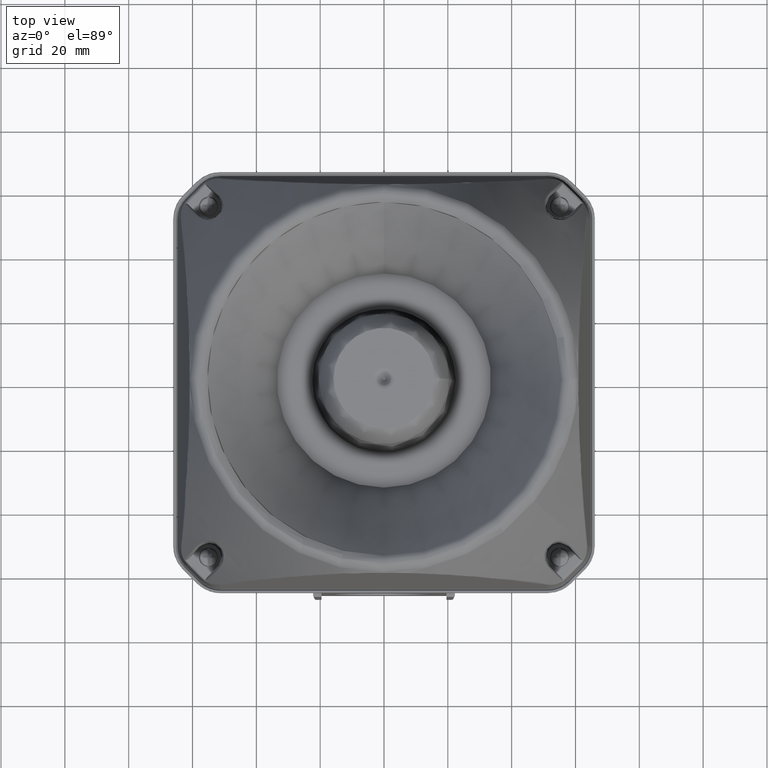
[diagram: clean part render]
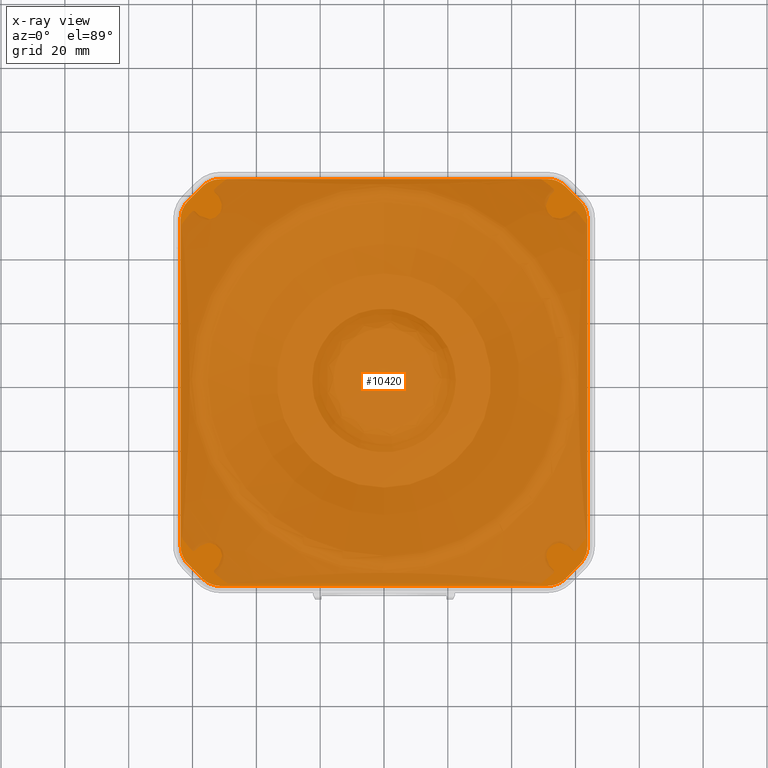
[diagram: x-ray — body ghosted, one internal face saturated and labeled with its STEP entity id]
A machine part, top view, then the same camera in x-ray: the body is ghosted and one INTERNAL B-rep face — a face not visible from any outside direction — is saturated and labeled: STEP entity #10420.
In plain terms, the highlighted face is a freeform B-spline surface patch.
Its self-contained STEP definition (entity closure, byte-faithful):
#32=B_SPLINE_SURFACE_WITH_KNOTS('',3,3,((#55914,#55915,#55916,#55917),(#55918,
#55919,#55920,#55921),(#55922,#55923,#55924,#55925),(#55926,#55927,#55928,
#55929)),.UNSPECIFIED.,.F.,.F.,.F.,(4,4),(4,4),(0.,1.),(0.,1.),.UNSPECIFIED.);
#2355=LINE('',#54090,#4521);
#2356=LINE('',#54097,#4522);
#2357=LINE('',#54104,#4523);
#2358=LINE('',#54111,#4524);
#2359=LINE('',#54118,#4525);
#2360=LINE('',#54125,#4526);
#2361=LINE('',#54132,#4527);
#2362=LINE('',#54139,#4528);
#4521=VECTOR('',#41732,1.);
#4522=VECTOR('',#41733,1.);
#4523=VECTOR('',#41734,1.);
#4524=VECTOR('',#41735,1.);
#4525=VECTOR('',#41736,1.);
#4526=VECTOR('',#41737,1.);
#4527=VECTOR('',#41738,1.);
#4528=VECTOR('',#41739,1.);
#7642=FACE_OUTER_BOUND('',#13525,.T.);
#9601=B_SPLINE_CURVE_WITH_KNOTS('',3,(#54084,#54085,#54086,#54087),.UNSPECIFIED.,
 .F.,.F.,(4,4),(0.,1.),.UNSPECIFIED.);
#9602=B_SPLINE_CURVE_WITH_KNOTS('',3,(#54092,#54093,#54094,#54095),.UNSPECIFIED.,
 .F.,.F.,(4,4),(0.,1.),.UNSPECIFIED.);
#9603=B_SPLINE_CURVE_WITH_KNOTS('',3,(#54099,#54100,#54101,#54102),.UNSPECIFIED.,
 .F.,.F.,(4,4),(0.,1.),.UNSPECIFIED.);
#9604=B_SPLINE_CURVE_WITH_KNOTS('',3,(#54106,#54107,#54108,#54109),.UNSPECIFIED.,
 .F.,.F.,(4,4),(0.,1.),.UNSPECIFIED.);
#9605=B_SPLINE_CURVE_WITH_KNOTS('',3,(#54113,#54114,#54115,#54116),.UNSPECIFIED.,
 .F.,.F.,(4,4),(0.,1.),.UNSPECIFIED.);
#9606=B_SPLINE_CURVE_WITH_KNOTS('',3,(#54120,#54121,#54122,#54123),.UNSPECIFIED.,
 .F.,.F.,(4,4),(0.,1.),.UNSPECIFIED.);
#9607=B_SPLINE_CURVE_WITH_KNOTS('',3,(#54127,#54128,#54129,#54130),.UNSPECIFIED.,
 .F.,.F.,(4,4),(0.,1.),.UNSPECIFIED.);
#9608=B_SPLINE_CURVE_WITH_KNOTS('',3,(#54134,#54135,#54136,#54137),.UNSPECIFIED.,
 .F.,.F.,(4,4),(0.,1.),.UNSPECIFIED.);
#10420=ADVANCED_FACE('',(#7642),#32,.F.);
#13525=EDGE_LOOP('',(#16799,#16800,#16801,#16802,#16803,#16804,#16805,#16806,
#16807,#16808,#16809,#16810,#16811,#16812,#16813,#16814));
#16799=ORIENTED_EDGE('',*,*,#29999,.F.);
#16800=ORIENTED_EDGE('',*,*,#29998,.F.);
#16801=ORIENTED_EDGE('',*,*,#29997,.F.);
#16802=ORIENTED_EDGE('',*,*,#29996,.F.);
#16803=ORIENTED_EDGE('',*,*,#29995,.F.);
#16804=ORIENTED_EDGE('',*,*,#29994,.F.);
#16805=ORIENTED_EDGE('',*,*,#29993,.F.);
#16806=ORIENTED_EDGE('',*,*,#29992,.F.);
#16807=ORIENTED_EDGE('',*,*,#29991,.F.);
#16808=ORIENTED_EDGE('',*,*,#29990,.F.);
#16809=ORIENTED_EDGE('',*,*,#29989,.F.);
#16810=ORIENTED_EDGE('',*,*,#29988,.F.);
#16811=ORIENTED_EDGE('',*,*,#30003,.F.);
#16812=ORIENTED_EDGE('',*,*,#30002,.F.);
#16813=ORIENTED_EDGE('',*,*,#30001,.F.);
#16814=ORIENTED_EDGE('',*,*,#30000,.F.);
#26639=VERTEX_POINT('',#54088);
#26640=VERTEX_POINT('',#54089);
#26641=VERTEX_POINT('',#54091);
#26642=VERTEX_POINT('',#54096);
#26643=VERTEX_POINT('',#54098);
#26644=VERTEX_POINT('',#54103);
#26645=VERTEX_POINT('',#54105);
#26646=VERTEX_POINT('',#54110);
#26647=VERTEX_POINT('',#54112);
#26648=VERTEX_POINT('',#54117);
#26649=VERTEX_POINT('',#54119);
#26650=VERTEX_POINT('',#54124);
#26651=VERTEX_POINT('',#54126);
#26652=VERTEX_POINT('',#54131);
#26653=VERTEX_POINT('',#54133);
#26654=VERTEX_POINT('',#54138);
#29988=EDGE_CURVE('',#26639,#26640,#9601,.T.);
#29989=EDGE_CURVE('',#26640,#26641,#2355,.T.);
#29990=EDGE_CURVE('',#26641,#26642,#9602,.T.);
#29991=EDGE_CURVE('',#26642,#26643,#2356,.T.);
#29992=EDGE_CURVE('',#26643,#26644,#9603,.T.);
#29993=EDGE_CURVE('',#26644,#26645,#2357,.T.);
#29994=EDGE_CURVE('',#26645,#26646,#9604,.T.);
#29995=EDGE_CURVE('',#26646,#26647,#2358,.T.);
#29996=EDGE_CURVE('',#26647,#26648,#9605,.T.);
#29997=EDGE_CURVE('',#26648,#26649,#2359,.T.);
#29998=EDGE_CURVE('',#26649,#26650,#9606,.T.);
#29999=EDGE_CURVE('',#26650,#26651,#2360,.T.);
#30000=EDGE_CURVE('',#26651,#26652,#9607,.T.);
#30001=EDGE_CURVE('',#26652,#26653,#2361,.T.);
#30002=EDGE_CURVE('',#26653,#26654,#9608,.T.);
#30003=EDGE_CURVE('',#26654,#26639,#2362,.T.);
#41732=DIRECTION('',(-3.01846998713561E-014,1.,0.));
#41733=DIRECTION('',(-0.707106781186548,0.707106781186547,0.));
#41734=DIRECTION('',(-1.,-3.01846998713561E-014,0.));
#41735=DIRECTION('',(-0.707106781186547,-0.707106781186547,0.));
#41736=DIRECTION('',(3.01846998713561E-014,-1.,0.));
#41737=DIRECTION('',(0.707106781186548,-0.707106781186547,0.));
#41738=DIRECTION('',(1.,3.03200572698824E-014,0.));
#41739=DIRECTION('',(0.707106781186547,0.707106781186547,0.));
#54084=CARTESIAN_POINT('',(61.4098847200115,-56.4238890782729,1.45000631833814));
#54085=CARTESIAN_POINT('',(62.9111391974697,-54.9221581746478,1.45000631833814));
#54086=CARTESIAN_POINT('',(63.7541579128052,-52.8878107596609,1.45000631833814));
#54087=CARTESIAN_POINT('',(63.7544949366132,-50.7634992948746,1.45000631833814));
#54088=CARTESIAN_POINT('',(61.4098847200115,-56.4238890782729,1.45000631833814));
#54089=CARTESIAN_POINT('',(63.7544949366132,-50.7634992948746,1.45000631833814));
#54090=CARTESIAN_POINT('',(63.7544949366132,-50.7634992948743,1.45000631833814));
#54091=CARTESIAN_POINT('',(63.7544949366101,51.7634992948779,1.45000631833814));
#54092=CARTESIAN_POINT('',(63.7544949366101,51.7634992948779,1.45000631833814));
#54093=CARTESIAN_POINT('',(63.7541580524367,53.8869306216478,1.45000631833814));
#54094=CARTESIAN_POINT('',(62.9117614502897,55.9215357243546,1.45000631833814));
#54095=CARTESIAN_POINT('',(61.4098847200084,57.423889078276,1.45000631833814));
#54096=CARTESIAN_POINT('',(61.4098847200084,57.423889078276,1.45000631833814));
#54097=CARTESIAN_POINT('',(112.673384014886,6.1603897833984,1.45000631833814));
#54098=CARTESIAN_POINT('',(56.9238890782729,61.9098847200115,1.45000631833814));
#54099=CARTESIAN_POINT('',(56.9238890782729,61.9098847200116,1.45000631833814));
#54100=CARTESIAN_POINT('',(55.4221581746642,63.4111391974533,1.45000631833814));
#54101=CARTESIAN_POINT('',(53.3878107596841,64.2541579128053,1.45000631833814));
#54102=CARTESIAN_POINT('',(51.2634992948743,64.2544949366132,1.45000631833814));
#54103=CARTESIAN_POINT('',(51.2634992948743,64.2544949366132,1.45000631833814));
#54104=CARTESIAN_POINT('',(55.7494949366097,64.2544949366134,1.45000631833814));
#54105=CARTESIAN_POINT('',(-51.2634992948779,64.2544949366101,1.45000631833814));
#54106=CARTESIAN_POINT('',(-51.2634992948779,64.2544949366101,1.45000631833814));
#54107=CARTESIAN_POINT('',(-53.3869306216246,64.2541580524367,1.45000631833814));
#54108=CARTESIAN_POINT('',(-55.4215357243382,63.4117614503062,1.45000631833814));
#54109=CARTESIAN_POINT('',(-56.923889078276,61.9098847200084,1.45000631833814));
#54110=CARTESIAN_POINT('',(-56.923889078276,61.9098847200084,1.45000631833814));
#54111=CARTESIAN_POINT('',(-56.9238890782729,61.9098847200115,1.45000631833814));
#54112=CARTESIAN_POINT('',(-61.4098847200115,57.4238890782729,1.45000631833814));
#54113=CARTESIAN_POINT('',(-61.4098847200115,57.4238890782729,1.45000631833814));
#54114=CARTESIAN_POINT('',(-62.9111391975011,55.9221581746165,1.45000631833814));
#54115=CARTESIAN_POINT('',(-63.7541579128054,53.8878107596164,1.45000631833814));
#54116=CARTESIAN_POINT('',(-63.7544949366133,51.7634992948744,1.45000631833814));
#54117=CARTESIAN_POINT('',(-63.7544949366132,51.7634992948744,1.45000631833814));
#54118=CARTESIAN_POINT('',(-63.7544949366101,-50.7634992948782,1.45000631833814));
#54119=CARTESIAN_POINT('',(-63.7544949366101,-50.7634992948779,1.45000631833814));
#54120=CARTESIAN_POINT('',(-63.7544949366101,-50.7634992948779,1.45000631833814));
#54121=CARTESIAN_POINT('',(-63.7541580524368,-52.8869306215357,1.45000631833814));
#54122=CARTESIAN_POINT('',(-62.911761450369,-54.9215357242753,1.45000631833814));
#54123=CARTESIAN_POINT('',(-61.4098847200084,-56.423889078276,1.45000631833814));
#54124=CARTESIAN_POINT('',(-61.4098847200084,-56.423889078276,1.45000631833814));
#54125=CARTESIAN_POINT('',(-5.66038978339822,-112.173384014886,1.45000631833814));
#54126=CARTESIAN_POINT('',(-56.9238890782729,-60.9098847200115,1.45000631833814));
#54127=CARTESIAN_POINT('',(-56.9238890782729,-60.9098847200115,1.45000631833814));
#54128=CARTESIAN_POINT('',(-55.4221581746875,-62.4111391974301,1.45000631833814));
#54129=CARTESIAN_POINT('',(-53.387810759717,-63.2541579128053,1.45000631833814));
#54130=CARTESIAN_POINT('',(-51.2634992948744,-63.2544949366132,1.45000631833814));
#54131=CARTESIAN_POINT('',(-51.2634992948744,-63.2544949366132,1.45000631833814));
#54132=CARTESIAN_POINT('',(55.7494949366136,-63.2544949366099,1.45000631833814));
#54133=CARTESIAN_POINT('',(51.2634992948779,-63.2544949366101,1.45000631833814));
#54134=CARTESIAN_POINT('',(51.2634992948779,-63.2544949366101,1.45000631833814));
#54135=CARTESIAN_POINT('',(53.3869306216478,-63.2541580524367,1.45000631833814));
#54136=CARTESIAN_POINT('',(55.4215357243546,-62.4117614502897,1.45000631833814));
#54137=CARTESIAN_POINT('',(56.923889078276,-60.9098847200084,1.45000631833814));
#54138=CARTESIAN_POINT('',(56.923889078276,-60.9098847200084,1.45000631833814));
#54139=CARTESIAN_POINT('',(61.4098847200115,-56.4238890782729,1.45000631833814));
#55914=CARTESIAN_POINT('',(-130.189917729629,5.43545827861606,1.45000631833815));
#55915=CARTESIAN_POINT('',(-85.1481257268806,47.186944762287,1.45000631833814));
#55916=CARTESIAN_POINT('',(-40.1063337241599,88.9384312459323,1.45000631833814));
#55917=CARTESIAN_POINT('',(4.93545827861597,130.689917729629,1.45000631833814));
#55918=CARTESIAN_POINT('',(-88.4384312459579,-39.6063337241322,1.45000631833813));
#55919=CARTESIAN_POINT('',(-43.3966392432097,2.14515275953869,1.45000631833812));
#55920=CARTESIAN_POINT('',(1.64515275951099,43.896639243184,1.45000631833812));
#55921=CARTESIAN_POINT('',(46.6869447622869,85.6481257268806,1.45000631833813));
#55922=CARTESIAN_POINT('',(-46.6869447623126,-84.6481257268529,1.45000631833813));
#55923=CARTESIAN_POINT('',(-1.64515275956431,-42.896639243182,1.45000631833813));
#55924=CARTESIAN_POINT('',(43.3966392431563,-1.14515275953668,1.45000631833813));
#55925=CARTESIAN_POINT('',(88.4384312459323,40.6063337241599,1.45000631833813));
#55926=CARTESIAN_POINT('',(-4.93545827861604,-129.689917729629,1.45000631833813));
#55927=CARTESIAN_POINT('',(40.1063337241322,-87.9384312459579,1.45000631833813));
#55928=CARTESIAN_POINT('',(85.1481257268529,-46.1869447623126,1.45000631833813));
#55929=CARTESIAN_POINT('',(130.189917729629,-4.43545827861604,1.45000631833813));